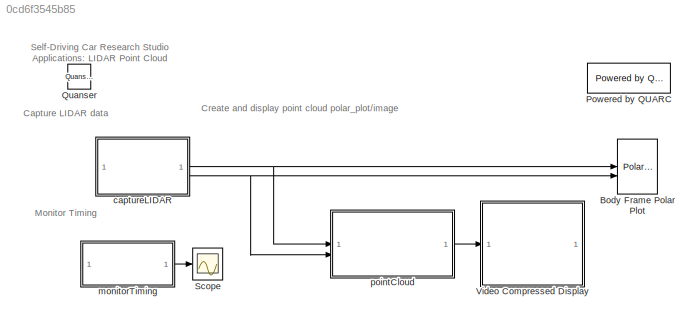
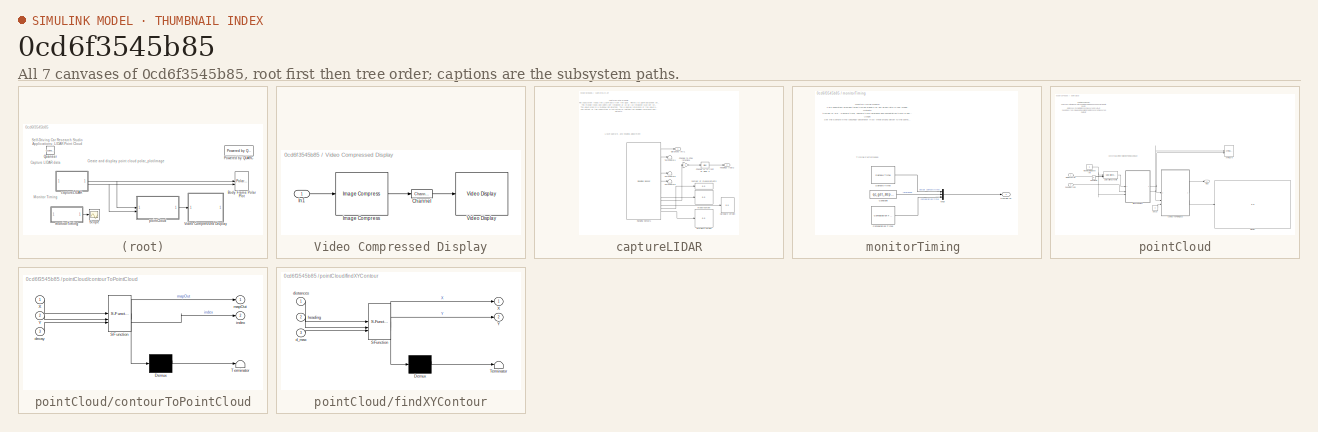
[diagram: thumbnail index - all 7 canvases of the model, root first then tree order]
MODEL slx_0cd6f3545b85
KIND model
CONFIG AbsTol = auto
CONFIG EnableMultiTasking = on
CONFIG FixedStep = 1/20
CONFIG MaxStep = auto
CONFIG MinStep = auto
CONFIG RelTol = 1e-3
CONFIG SampleTimeConstraint = Unconstrained
CONFIG SolverName = ode2
CONFIG StartTime = 0.0
CONFIG StopTime = inf
BLOCK [Reference] Body Frame Polar Plot  REF=quarc_library/Sinks/Figures/Polar Figure
  SourceBlock = quarc_library/Sinks/Figures/Polar Figure
  SourceProductName = QUARC Targets
  SourceType = Polar Figure
BLOCK [Reference] Powered by QUARC  REF=quarc_library/Logos/Powered by QUARC
  SourceBlock = quarc_library/Logos/Powered by QUARC
  SourceProductName = QUARC Targets
  SourceType = Powered by QUARC
BLOCK [Reference] Quanser  REF=quarc_library/Logos/Quanser
  SourceBlock = quarc_library/Logos/Quanser
  SourceProductName = QUARC Targets
  SourceType = Powered by Quanser
BLOCK [Scope] Scope
  Floating = off
  NumInputPorts = 1
  ScopeSpecificationString = Simulink.scopes.TimeScopeBlockCfg('CurrentConfiguration', extmgr.ConfigurationSet(extmgr.Configuration('Core','General UI',true),extmgr.Configuration('Core','Source UI',true),extmgr.Configuration('Sources','WiredSimulink',true),extmgr.Configuration('Visuals','Time Domain',true,'SerializedDisplays',{struct('MinYLimReal','-0.00517','MaxYLimReal','0.04652','YLabelReal','','MinYLimMag','0.00000','MaxY...<+1428ch>
BLOCK [SubSystem] Video Compressed Display
  CopyFcn = set_param(gcbh, 'UserData', gcb);\nset_param(gcbh, 'LinkStatus', 'none');
  LoadFcn = set_param(gcbh, 'UserData', gcb);
  NameChangeFcn = video_display_show([get_param(gcbh, 'UserData'), '/Video Display'], 'rename', [gcb, '/Video Display']);\nvideo_display_show([gcb, '/Video Display'], 'add', gcb);\nset_param(gcbh, 'UserData', gcb);
  OpenFcn = video_display_show([gcb, '/Video Display'], 'show', gcb);
  PreDeleteFcn = video_display_show([gcb, '/Video Display'], 'delete');
  StartFcn = video_display_show([gcb, '/Video Display'], 'add', gcb);
  UndoDeleteFcn = set_param(gcbh, 'UserData', gcb);
BLOCK [Reference] Video Compressed Display/Channel  REF=quarc_library/Signal Routing/Channel
  SourceBlock = quarc_library/Signal Routing/Channel
  SourceProductName = QUARC Targets
  SourceType = Channel
BLOCK [Reference] Video Compressed Display/Image Compress  REF=quarc_library/Image Processing/Generic/Image Compress
  AttributesFormatString = (%<algorithm>)
  SourceBlock = quarc_library/Image Processing/Generic/Image Compress
  SourceProductName = QUARC Targets
  SourceType = Image Compress
BLOCK [Inport] Video Compressed Display/In1
BLOCK [Reference] Video Compressed Display/Video Display  REF=quarc_library/Multimedia/Video Display
  SourceBlock = quarc_library/Multimedia/Video Display
  SourceProductName = QUARC Targets
  SourceType = Video Display
  Tag = QCar2_lidar_point_cloud/Video Compressed\nDisplay/Video Display
  UserDataPersistent = on
BLOCK [SubSystem] captureLIDAR
BLOCK [Bias] captureLIDAR/Change +x to front of QCar 2
  Bias = -pi
  SaturateOnIntegerOverflow = off
BLOCK [Gain] captureLIDAR/Change to CCW rotation1
  Gain = -1
BLOCK [Display] captureLIDAR/Firmware version
  Decimation = 1
BLOCK [Display] captureLIDAR/Hardware version
  Decimation = 1
BLOCK [Display] captureLIDAR/Model number
  Decimation = 1
BLOCK [Reference] captureLIDAR/Ranging Sensor1  REF=quarc_library/Devices/Third-Party/Sensors/Ranging Sensor
  SourceBlock = quarc_library/Devices/Third-Party/Sensors/Ranging Sensor
  SourceProductName = QUARC Targets
  SourceType = Ranging Sensor
BLOCK [Terminator] captureLIDAR/Terminator4
BLOCK [Terminator] captureLIDAR/Terminator5
BLOCK [Terminator] captureLIDAR/Terminator6
BLOCK [Outport] captureLIDAR/distances (m)1
  VectorParamsAs1DForOutWhenUnconnected = off
BLOCK [Outport] captureLIDAR/headings (rad)2
  Port = 2
  VectorParamsAs1DForOutWhenUnconnected = off
BLOCK [Display] captureLIDAR/number of measurements
  Decimation = 1
  NameLocation = top
BLOCK [SubSystem] monitorTiming 
BLOCK [Reference] monitorTiming /Computation Time  REF=quarc_library/Sources/Time/Computation Time
  SourceBlock = quarc_library/Sources/Time/Computation Time
  SourceProductName = QUARC Targets
  SourceType = Computation Time
BLOCK [Constant] monitorTiming /Constant
  Value = qc_get_step_size
BLOCK [Mux] monitorTiming /Mux
  DisplayOption = bar
  Inputs = 3
BLOCK [Reference] monitorTiming /Sample Time  REF=quarc_library/Sources/Time/Sample Time
  Priority = -99
  SourceBlock = quarc_library/Sources/Time/Sample Time
  SourceProductName = QUARC Targets
  SourceType = Sample Time
BLOCK [Outport] monitorTiming /timing (s)
  VectorParamsAs1DForOutWhenUnconnected = off
BLOCK [SubSystem] pointCloud
BLOCK [Constant] pointCloud/Constant1
  Value = 0
BLOCK [Display] pointCloud/Display
  Format = long
BLOCK [Reference] pointCloud/Saturation Dynamic  REF=simulink/Discontinuities/Saturation
Dynamic
  SourceBlock = simulink/Discontinuities/Saturation\nDynamic
  SourceType = Saturation Dynamic
BLOCK [Reference] pointCloud/XY Figure  REF=quarc_library/Sinks/Figures/XY Figure
  SourceBlock = quarc_library/Sinks/Figures/XY Figure
  SourceProductName = QUARC Targets
  SourceType = XY Figure
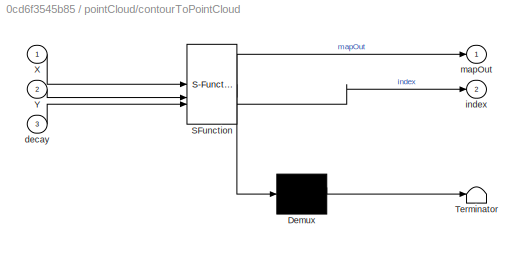
BLOCK [SubSystem] pointCloud/contourToPointCloud
  ErrorFcn = Stateflow.Translate.translate
  NameLocation = top
  PermitHierarchicalResolution = ExplicitOnly
  SFBlockType = MATLAB Function
  TreatAsAtomicUnit = on
BLOCK [Demux] pointCloud/contourToPointCloud/ Demux 
  Outputs = 1
BLOCK [S-Function] pointCloud/contourToPointCloud/ SFunction 
  EnableBusSupport = on
  FunctionName = sf_sfun
  PortCounts = [3 3]
  SFcnIsStateOwnerBlock = off
  SFunctionDeploymentMode = off
  Tag = Stateflow S-Function 8
BLOCK [Terminator] pointCloud/contourToPointCloud/ Terminator 
BLOCK [Inport] pointCloud/contourToPointCloud/X
BLOCK [Inport] pointCloud/contourToPointCloud/Y
  Port = 2
BLOCK [Inport] pointCloud/contourToPointCloud/decay
  Port = 3
BLOCK [Outport] pointCloud/contourToPointCloud/index
  Port = 2
BLOCK [Outport] pointCloud/contourToPointCloud/mapOut
  VectorParamsAs1DForOutWhenUnconnected = off
BLOCK [Constant] pointCloud/decay
  Value = 0
BLOCK [Inport] pointCloud/distances (m)
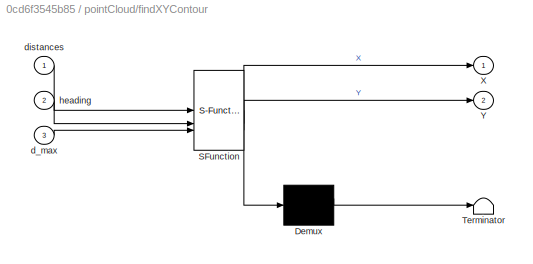
BLOCK [SubSystem] pointCloud/findXYContour
  ErrorFcn = Stateflow.Translate.translate
  NameLocation = top
  PermitHierarchicalResolution = ExplicitOnly
  SFBlockType = MATLAB Function
  TreatAsAtomicUnit = on
BLOCK [Demux] pointCloud/findXYContour/ Demux 
  Outputs = 1
BLOCK [S-Function] pointCloud/findXYContour/ SFunction 
  EnableBusSupport = on
  FunctionName = sf_sfun
  PortCounts = [3 3]
  SFcnIsStateOwnerBlock = off
  SFunctionDeploymentMode = off
  Tag = Stateflow S-Function 5
BLOCK [Terminator] pointCloud/findXYContour/ Terminator 
BLOCK [Outport] pointCloud/findXYContour/X
  VectorParamsAs1DForOutWhenUnconnected = off
BLOCK [Outport] pointCloud/findXYContour/Y
  Port = 2
  VectorParamsAs1DForOutWhenUnconnected = off
BLOCK [Inport] pointCloud/findXYContour/d_max
  Port = 3
BLOCK [Inport] pointCloud/findXYContour/distances
BLOCK [Inport] pointCloud/findXYContour/heading
  Port = 2
BLOCK [Inport] pointCloud/heading (rad)
  Port = 2
BLOCK [Outport] pointCloud/map
  VectorParamsAs1DForOutWhenUnconnected = off
BLOCK [Constant] pointCloud/maximumDistance (m)
  NameLocation = top
  Value = 5
ANNOTATION (root): Self-Driving Car Research Studio Applications: LIDAR Point Cloud
ANNOTATION (root): Capture LIDAR data
ANNOTATION (root): Create and display point cloud polar_plot/image
ANNOTATION (root): Monitor Timing
ANNOTATION captureLIDAR: captureLIDAR Module: This subsystem reads the LIDAR data from the QCar. Refers to LiDAR datasheet on detailed data specifications. This module reads 800 points per revolution at 10 Hz (10 revolution scan per second). The LiDAR scans in a CLOCKWISE direction. The 0 degree reference of the LiDAR points to the LEFT side of the QCar. The output of this subsystem is corrected by shifting the heading re...<+257ch>
ANNOTATION captureLIDAR: LIDAR Capture, and heading adjustment
ANNOTATION monitorTiming : monitorTiming Module: This subsystem provides three timing signals for any given rate in your model. Outputs: timing (s) n/a : Sample time, sample time reference and computation time in seconds. Usage: Set the 'Sample time (seconds)' parameter in all three blocks below to the same number. This will provide the actual sample time at each time step, the reference sample time that is being targeted a...<+103ch>
ANNOTATION monitorTiming : Timing Performance
ANNOTATION pointCloud: pointCloud Module: This subsystem generates a point cloud image based on LIDAR data. Inputs: distances (m) n/a : Distances measured by LIDAR headings (rad) n/a : Headings at which distances are measured Outputs: map (px) {0, 1} : 400 x 400 point cloud image Usage: The data is dynamically saturated based on the maximumDistance (m) constant. To prevent a circle with radius being the maximumDistance ...<+288ch>
ANNOTATION pointCloud: Convert LIDAR information to Point Cloud Image
LINE captureLIDAR/Change +x to front of QCar 2:1 -> captureLIDAR/headings (rad)2:1
LINE captureLIDAR/Change to CCW rotation1:1 -> captureLIDAR/Change +x to front of QCar 2:1
LINE captureLIDAR/Ranging Sensor1:1 -> captureLIDAR/distances (m)1:1
LINE captureLIDAR/Ranging Sensor1:2 -> captureLIDAR/Terminator4:1
LINE captureLIDAR/Ranging Sensor1:3 -> captureLIDAR/Change to CCW rotation1:1
LINE captureLIDAR/Ranging Sensor1:4 -> captureLIDAR/Terminator5:1
LINE captureLIDAR/Ranging Sensor1:5 -> captureLIDAR/Terminator6:1
LINE captureLIDAR/Ranging Sensor1:6 -> captureLIDAR/number of measurements:1
LINE captureLIDAR/Ranging Sensor1:7 -> captureLIDAR/Model number:1
LINE captureLIDAR/Ranging Sensor1:8 -> captureLIDAR/Hardware version:1
LINE captureLIDAR/Ranging Sensor1:9 -> captureLIDAR/Firmware version:1
NET captureLIDAR:1 -> Body Frame Polar Plot:1, pointCloud:1
NET captureLIDAR:2 -> Body Frame Polar Plot:2, pointCloud:2
LINE monitorTiming /Computation Time:1 -> monitorTiming /Mux:3
LINE monitorTiming /Constant:1 -> monitorTiming /Mux:2
LINE monitorTiming /Mux:1 -> monitorTiming /timing (s):1
LINE monitorTiming /Sample Time:1 -> monitorTiming /Mux:1
LINE monitorTiming :1 -> Scope:1
LINE pointCloud/Constant1:1 -> pointCloud/Saturation Dynamic:3
LINE pointCloud/Saturation Dynamic:1 -> pointCloud/findXYContour:1
LINE pointCloud/contourToPointCloud:1 -> pointCloud/map:1
LINE pointCloud/contourToPointCloud:2 -> pointCloud/Display:1
LINE pointCloud/decay:1 -> pointCloud/contourToPointCloud:3
LINE pointCloud/distances (m):1 -> pointCloud/Saturation Dynamic:2
NET pointCloud/findXYContour:1 -> pointCloud/XY Figure:2, pointCloud/contourToPointCloud:1
NET pointCloud/findXYContour:2 -> pointCloud/XY Figure:1, pointCloud/contourToPointCloud:2
LINE pointCloud/heading (rad):1 -> pointCloud/findXYContour:2
NET pointCloud/maximumDistance (m):1 -> pointCloud/Saturation Dynamic:1, pointCloud/findXYContour:3
LINE pointCloud:1 -> Video Compressed Display:1
note: NET lines group one-source signal fan-out (src -> all destinations, sorted); 1:1 wires keep LINE
CHART pointCloud/findXYContour states=1 transitions=1
  STATE_LABEL 'eML_blk_kernel()'
  STATE_LABEL 'SCRIPT:\nfunction [X, Y] = findXYContour(distances, heading, d_max)\n\n% find indices where distances corresponds to the d_max (bordering circle)\nidx = distances < d_max;\n\n% drop the bordering circle\ntemp_distances = distances(idx);\ntemp_heading = heading(idx);\n% find X, Y pairs from distance, heading\nX = temp_distances.*cos(temp_heading);\nY = temp_distances.*sin(temp_heading);\n'
CHART pointCloud/contourToPointCloud states=1 transitions=1
  STATE_LABEL 'eML_blk_kernel()'
  STATE_LABEL 'SCRIPT:\nfunction [mapOut,index]= contourToPointCloud(X, Y, decay)\n\ndim = 400; % Image size will be [dim x dim]\ngain = 50; % 50 pixels per meter\n\npersistent mapInternal\nif isempty(mapInternal)\n    mapInternal = zeros(dim, dim);\nelse\n    mapInternal = decay*mapInternal; % decay older data... \nend\n\npX = round(dim/2 - X*gain); % X coordinates w.r.t image center\npY = round(dim/2 - Y*gain); % Y coordina...<+237ch>'
CHART  states=0 transitions=0
CHART  states=0 transitions=0
